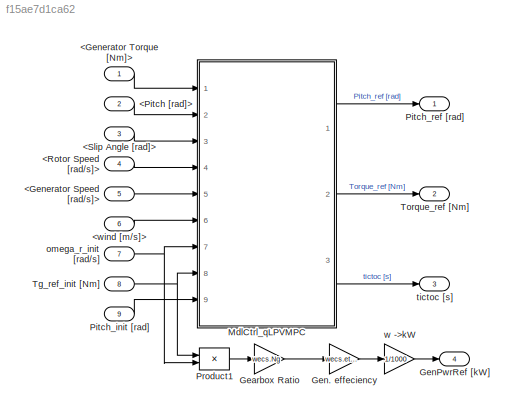
MODEL slx_f15ae7d1ca62
KIND model
CONFIG AbsTol = auto
CONFIG EnableMultiTasking = off
CONFIG FixedStep = DT
CONFIG MaxStep = auto
CONFIG MinStep = auto
CONFIG RelTol = 1e-3
CONFIG SampleTimeConstraint = Unconstrained
CONFIG Solver = FixedStepAuto
CONFIG SolverName = FixedStepAuto
CONFIG StartTime = 0.0
CONFIG StopTime = 10.0
BLOCK [Inport] <Generator Speed [rad//s]>
  IconDisplay = Port number
  Port = 5
BLOCK [Inport] <Generator Torque  [Nm]>
  IconDisplay = Port number
BLOCK [Inport] <Pitch [rad]>
  IconDisplay = Port number
  Port = 2
BLOCK [Inport] <Rotor Speed [rad//s]>
  IconDisplay = Port number
  Port = 4
BLOCK [Inport] <Slip Angle [rad]>
  IconDisplay = Port number
  Port = 3
BLOCK [Inport] <wind [m//s]>
  IconDisplay = Port number
  Port = 6
BLOCK [Gain] Gearbox Ratio
  Gain = wecs.Ng
  OutDataTypeStr = Inherit: Inherit via internal rule
  ParamDataTypeStr = Inherit: Inherit via internal rule
  SaturateOnIntegerOverflow = off
BLOCK [Gain] Gen. effeciency
  Gain = wecs.etag
  OutDataTypeStr = Inherit: Inherit via internal rule
  ParamDataTypeStr = Inherit: Inherit via internal rule
  SaturateOnIntegerOverflow = off
BLOCK [Outport] GenPwrRef [kW]
  IconDisplay = Port number
  Port = 4
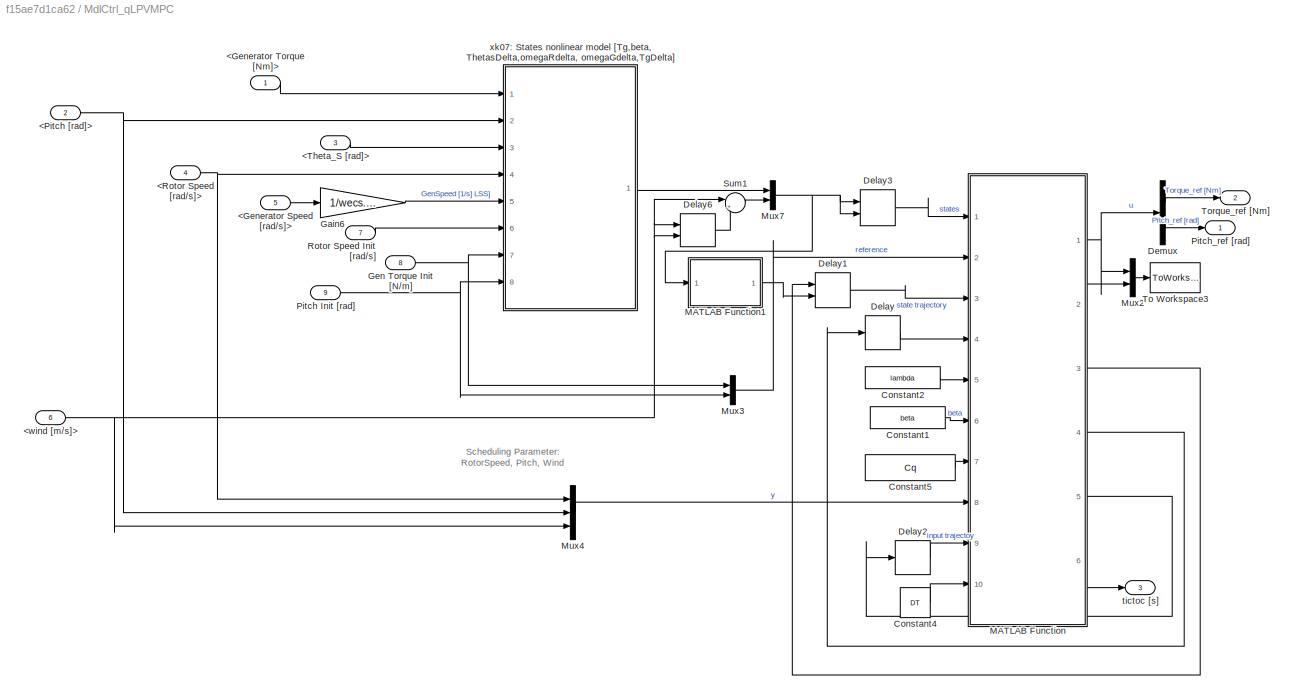
BLOCK [SubSystem] MdlCtrl_qLPVMPC
  Ports = [9, 3]
  RequestExecContextInheritance = off
BLOCK [Inport] MdlCtrl_qLPVMPC/<Generator Speed [rad//s]>
  IconDisplay = Port number
  Port = 5
BLOCK [Inport] MdlCtrl_qLPVMPC/<Generator Torque  [Nm]>
  IconDisplay = Port number
BLOCK [Inport] MdlCtrl_qLPVMPC/<Pitch [rad]>
  IconDisplay = Port number
  Port = 2
BLOCK [Inport] MdlCtrl_qLPVMPC/<Rotor Speed [rad//s]>
  IconDisplay = Port number
  Port = 4
BLOCK [Inport] MdlCtrl_qLPVMPC/<Theta_S [rad]>
  IconDisplay = Port number
  Port = 3
BLOCK [Inport] MdlCtrl_qLPVMPC/<wind [m//s]>
  IconDisplay = Port number
  Port = 6
BLOCK [Constant] MdlCtrl_qLPVMPC/Constant1
  Value = beta
BLOCK [Constant] MdlCtrl_qLPVMPC/Constant2
  Value = lambda
BLOCK [Constant] MdlCtrl_qLPVMPC/Constant4
  Value = DT
BLOCK [Constant] MdlCtrl_qLPVMPC/Constant5
  Value = Cq
BLOCK [Delay] MdlCtrl_qLPVMPC/Delay
  DelayLength = 1
  InitialCondition = zeros(160,1)
  InputPortMap = u0
  Ports = [1, 1]
BLOCK [Delay] MdlCtrl_qLPVMPC/Delay1
  DelayLength = 1
  InitialCondition = Xk07
  InitialConditionSource = Input port
  InputPortMap = u0,p4
  Ports = [2, 1]
BLOCK [Delay] MdlCtrl_qLPVMPC/Delay2
  DelayLength = 1
  InitialCondition = zeros(80,1)
  InputPortMap = u0
  Ports = [1, 1]
BLOCK [Delay] MdlCtrl_qLPVMPC/Delay3
  DelayLength = 1
  InitialCondition = xk07
  InitialConditionSource = Input port
  InputPortMap = u0,p4
  Ports = [2, 1]
BLOCK [Delay] MdlCtrl_qLPVMPC/Delay6
  DelayLength = 1
  InitialCondition = [0, Lin_points.Torque(1)]
  InitialConditionSource = Input port
  InputPortMap = u0,p4
  Ports = [2, 1]
BLOCK [Demux] MdlCtrl_qLPVMPC/Demux
  DisplayOption = bar
  Outputs = 2
  Ports = [1, 2]
BLOCK [Gain] MdlCtrl_qLPVMPC/Gain6
  Gain = 1/wecs.Ng
  OutDataTypeStr = Inherit: Inherit via internal rule
  ParamDataTypeStr = Inherit: Inherit via internal rule
  SaturateOnIntegerOverflow = off
BLOCK [Inport] MdlCtrl_qLPVMPC/Gen Torque Init [N//m]
  IconDisplay = Port number
  Port = 8
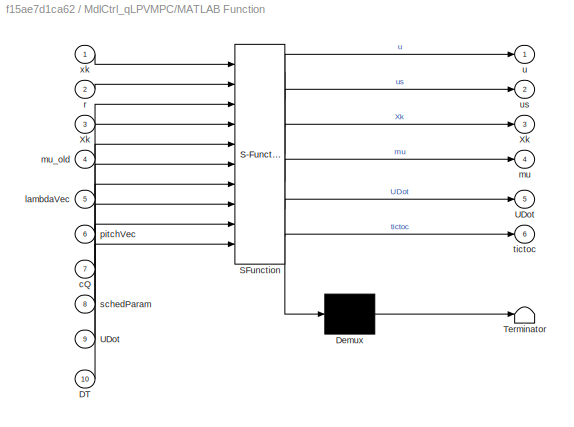
BLOCK [SubSystem] MdlCtrl_qLPVMPC/MATLAB Function
  ErrorFcn = Stateflow.Translate.translate
  PermitHierarchicalResolution = ExplicitOnly
  Ports = [10, 6]
  RequestExecContextInheritance = off
  SFBlockType = MATLAB Function
  TreatAsAtomicUnit = on
BLOCK [Demux] MdlCtrl_qLPVMPC/MATLAB Function/ Demux 
  Outputs = 1
  Ports = [1, 1]
BLOCK [S-Function] MdlCtrl_qLPVMPC/MATLAB Function/ SFunction 
  EnableBusSupport = on
  FunctionName = sf_sfun
  PortCounts = [10 7]
  Ports = [10, 7]
  SFcnIsStateOwnerBlock = off
  SFunctionDeploymentMode = off
  Tag = Stateflow S-Function 2
BLOCK [Terminator] MdlCtrl_qLPVMPC/MATLAB Function/ Terminator 
BLOCK [Inport] MdlCtrl_qLPVMPC/MATLAB Function/DT
  IconDisplay = Port number
  Port = 10
BLOCK [Outport] MdlCtrl_qLPVMPC/MATLAB Function/UDot
  IconDisplay = Port number
  Port = 5
  VectorParamsAs1DForOutWhenUnconnected = off
BLOCK [Inport] MdlCtrl_qLPVMPC/MATLAB Function/UDot 
  IconDisplay = Port number
  Port = 9
BLOCK [Outport] MdlCtrl_qLPVMPC/MATLAB Function/Xk
  IconDisplay = Port number
  Port = 3
  VectorParamsAs1DForOutWhenUnconnected = off
BLOCK [Inport] MdlCtrl_qLPVMPC/MATLAB Function/Xk 
  IconDisplay = Port number
  Port = 3
BLOCK [Inport] MdlCtrl_qLPVMPC/MATLAB Function/cQ
  IconDisplay = Port number
  Port = 7
BLOCK [Inport] MdlCtrl_qLPVMPC/MATLAB Function/lambdaVec
  IconDisplay = Port number
  Port = 5
BLOCK [Outport] MdlCtrl_qLPVMPC/MATLAB Function/mu
  IconDisplay = Port number
  Port = 4
  VectorParamsAs1DForOutWhenUnconnected = off
BLOCK [Inport] MdlCtrl_qLPVMPC/MATLAB Function/mu_old
  IconDisplay = Port number
  Port = 4
BLOCK [Inport] MdlCtrl_qLPVMPC/MATLAB Function/pitchVec
  IconDisplay = Port number
  Port = 6
BLOCK [Inport] MdlCtrl_qLPVMPC/MATLAB Function/r
  IconDisplay = Port number
  Port = 2
BLOCK [Inport] MdlCtrl_qLPVMPC/MATLAB Function/schedParam
  IconDisplay = Port number
  Port = 8
BLOCK [Outport] MdlCtrl_qLPVMPC/MATLAB Function/tictoc
  IconDisplay = Port number
  Port = 6
  VectorParamsAs1DForOutWhenUnconnected = off
BLOCK [Outport] MdlCtrl_qLPVMPC/MATLAB Function/u
  IconDisplay = Port number
  VectorParamsAs1DForOutWhenUnconnected = off
BLOCK [Outport] MdlCtrl_qLPVMPC/MATLAB Function/us
  IconDisplay = Port number
  Port = 2
  VectorParamsAs1DForOutWhenUnconnected = off
BLOCK [Inport] MdlCtrl_qLPVMPC/MATLAB Function/xk
  IconDisplay = Port number
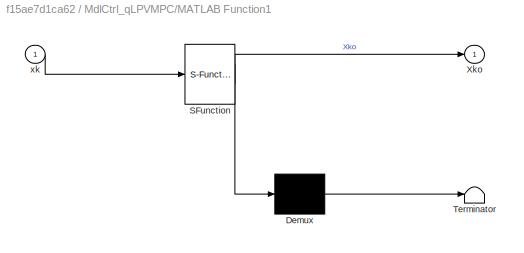
BLOCK [SubSystem] MdlCtrl_qLPVMPC/MATLAB Function1
  ErrorFcn = Stateflow.Translate.translate
  PermitHierarchicalResolution = ExplicitOnly
  Ports = [1, 1]
  RequestExecContextInheritance = off
  SFBlockType = MATLAB Function
  TreatAsAtomicUnit = on
BLOCK [Demux] MdlCtrl_qLPVMPC/MATLAB Function1/ Demux 
  Outputs = 1
  Ports = [1, 1]
BLOCK [S-Function] MdlCtrl_qLPVMPC/MATLAB Function1/ SFunction 
  EnableBusSupport = on
  FunctionName = sf_sfun
  PortCounts = [1 2]
  Ports = [1, 2]
  SFcnIsStateOwnerBlock = off
  SFunctionDeploymentMode = off
  Tag = Stateflow S-Function 1
BLOCK [Terminator] MdlCtrl_qLPVMPC/MATLAB Function1/ Terminator 
BLOCK [Outport] MdlCtrl_qLPVMPC/MATLAB Function1/Xko
  IconDisplay = Port number
BLOCK [Inport] MdlCtrl_qLPVMPC/MATLAB Function1/xk
  IconDisplay = Port number
BLOCK [Mux] MdlCtrl_qLPVMPC/Mux2
  DisplayOption = bar
  Inputs = 2
  Ports = [2, 1]
BLOCK [Mux] MdlCtrl_qLPVMPC/Mux3
  DisplayOption = bar
  Inputs = 2
  Ports = [2, 1]
BLOCK [Mux] MdlCtrl_qLPVMPC/Mux4
  DisplayOption = bar
  Inputs = 3
  Ports = [3, 1]
BLOCK [Mux] MdlCtrl_qLPVMPC/Mux7
  DisplayOption = bar
  Inputs = 2
  Ports = [2, 1]
BLOCK [Inport] MdlCtrl_qLPVMPC/Pitch Init [rad]
  IconDisplay = Port number
  Port = 9
BLOCK [Outport] MdlCtrl_qLPVMPC/Pitch_ref [rad]
  IconDisplay = Port number
BLOCK [Inport] MdlCtrl_qLPVMPC/Rotor Speed Init [rad//s]
  IconDisplay = Port number
  Port = 7
BLOCK [Sum] MdlCtrl_qLPVMPC/Sum1
  IconShape = round
  InputSameDT = off
  Inputs = |+-
  OutDataTypeStr = Inherit: Inherit via internal rule
  Ports = [2, 1]
  SaturateOnIntegerOverflow = off
BLOCK [ToWorkspace] MdlCtrl_qLPVMPC/To Workspace3
  Commented = on
  FixptAsFi = on
  MaxDataPoints = inf
  Ports = [1]
  SampleTime = -1
  Save2DSignal = 2-D array (concatenate along first dimension)
  VariableName = u_uss
BLOCK [Outport] MdlCtrl_qLPVMPC/Torque_ref [Nm]
  IconDisplay = Port number
  Port = 2
BLOCK [Outport] MdlCtrl_qLPVMPC/tictoc [s]
  IconDisplay = Port number
  Port = 3
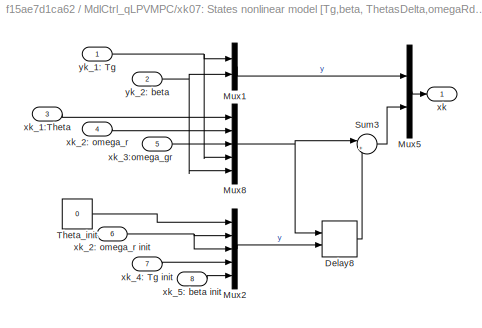
BLOCK [SubSystem] MdlCtrl_qLPVMPC/xk07: States nonlinear model [Tg,beta, ThetasDelta,omegaRdelta, omegaGdelta,TgDelta]
  Ports = [8, 1]
  RequestExecContextInheritance = off
BLOCK [Delay] MdlCtrl_qLPVMPC/xk07: States nonlinear model [Tg,beta, ThetasDelta,omegaRdelta, omegaGdelta,TgDelta]/Delay8
  DelayLength = 1
  InitialCondition = [0,omegabar]
  InitialConditionSource = Input port
  InputPortMap = u0,p4
  Ports = [2, 1]
BLOCK [Mux] MdlCtrl_qLPVMPC/xk07: States nonlinear model [Tg,beta, ThetasDelta,omegaRdelta, omegaGdelta,TgDelta]/Mux1
  DisplayOption = bar
  Inputs = 2
  Ports = [2, 1]
BLOCK [Mux] MdlCtrl_qLPVMPC/xk07: States nonlinear model [Tg,beta, ThetasDelta,omegaRdelta, omegaGdelta,TgDelta]/Mux2
  DisplayOption = bar
  Inputs = 5
  Ports = [5, 1]
BLOCK [Mux] MdlCtrl_qLPVMPC/xk07: States nonlinear model [Tg,beta, ThetasDelta,omegaRdelta, omegaGdelta,TgDelta]/Mux5
  DisplayOption = bar
  Inputs = 2
  Ports = [2, 1]
BLOCK [Mux] MdlCtrl_qLPVMPC/xk07: States nonlinear model [Tg,beta, ThetasDelta,omegaRdelta, omegaGdelta,TgDelta]/Mux8
  DisplayOption = bar
  Inputs = 5
  Ports = [5, 1]
BLOCK [Sum] MdlCtrl_qLPVMPC/xk07: States nonlinear model [Tg,beta, ThetasDelta,omegaRdelta, omegaGdelta,TgDelta]/Sum3
  IconShape = round
  InputSameDT = off
  Inputs = |+-
  OutDataTypeStr = Inherit: Inherit via internal rule
  Ports = [2, 1]
  SaturateOnIntegerOverflow = off
BLOCK [Constant] MdlCtrl_qLPVMPC/xk07: States nonlinear model [Tg,beta, ThetasDelta,omegaRdelta, omegaGdelta,TgDelta]/Theta_init
  Value = 0
BLOCK [Outport] MdlCtrl_qLPVMPC/xk07: States nonlinear model [Tg,beta, ThetasDelta,omegaRdelta, omegaGdelta,TgDelta]/xk
  IconDisplay = Port number
  VectorParamsAs1DForOutWhenUnconnected = off
BLOCK [Inport] MdlCtrl_qLPVMPC/xk07: States nonlinear model [Tg,beta, ThetasDelta,omegaRdelta, omegaGdelta,TgDelta]/xk_1:Theta
  IconDisplay = Port number
  Port = 3
BLOCK [Inport] MdlCtrl_qLPVMPC/xk07: States nonlinear model [Tg,beta, ThetasDelta,omegaRdelta, omegaGdelta,TgDelta]/xk_2: omega_r
  IconDisplay = Port number
  Port = 4
BLOCK [Inport] MdlCtrl_qLPVMPC/xk07: States nonlinear model [Tg,beta, ThetasDelta,omegaRdelta, omegaGdelta,TgDelta]/xk_2: omega_r init
  IconDisplay = Port number
  Port = 6
BLOCK [Inport] MdlCtrl_qLPVMPC/xk07: States nonlinear model [Tg,beta, ThetasDelta,omegaRdelta, omegaGdelta,TgDelta]/xk_3:omega_gr 
  IconDisplay = Port number
  Port = 5
BLOCK [Inport] MdlCtrl_qLPVMPC/xk07: States nonlinear model [Tg,beta, ThetasDelta,omegaRdelta, omegaGdelta,TgDelta]/xk_4: Tg init
  IconDisplay = Port number
  Port = 7
BLOCK [Inport] MdlCtrl_qLPVMPC/xk07: States nonlinear model [Tg,beta, ThetasDelta,omegaRdelta, omegaGdelta,TgDelta]/xk_5: beta init
  IconDisplay = Port number
  Port = 8
BLOCK [Inport] MdlCtrl_qLPVMPC/xk07: States nonlinear model [Tg,beta, ThetasDelta,omegaRdelta, omegaGdelta,TgDelta]/yk_1: Tg
  IconDisplay = Port number
BLOCK [Inport] MdlCtrl_qLPVMPC/xk07: States nonlinear model [Tg,beta, ThetasDelta,omegaRdelta, omegaGdelta,TgDelta]/yk_2: beta
  IconDisplay = Port number
  Port = 2
BLOCK [Inport] Pitch_init [rad]
  IconDisplay = Port number
  Port = 9
BLOCK [Outport] Pitch_ref  [rad]
  IconDisplay = Port number
BLOCK [Product] Product1
  InputSameDT = off
  OutDataTypeStr = Inherit: Inherit via internal rule
  Ports = [2, 1]
  SaturateOnIntegerOverflow = off
BLOCK [Inport] Tg_ref_init [Nm]
  IconDisplay = Port number
  Port = 8
BLOCK [Outport] Torque_ref [Nm]
  IconDisplay = Port number
  Port = 2
BLOCK [Inport] omega_r_init  [rad//s]
  IconDisplay = Port number
  Port = 7
BLOCK [Outport] tictoc [s]
  IconDisplay = Port number
  Port = 3
BLOCK [Gain] w ->kW
  Gain = 1/1000
  OutDataTypeStr = Inherit: Inherit via internal rule
  ParamDataTypeStr = Inherit: Inherit via internal rule
  SaturateOnIntegerOverflow = off
ANNOTATION MdlCtrl_qLPVMPC: Scheduling Parameter: RotorSpeed, Pitch, Wind
LINE <Generator Speed [rad//s]>:1 -> MdlCtrl_qLPVMPC:5
LINE <Generator Torque  [Nm]>:1 -> MdlCtrl_qLPVMPC:1
LINE <Pitch [rad]>:1 -> MdlCtrl_qLPVMPC:2
LINE <Rotor Speed [rad//s]>:1 -> MdlCtrl_qLPVMPC:4
LINE <Slip Angle [rad]>:1 -> MdlCtrl_qLPVMPC:3
LINE <wind [m//s]>:1 -> MdlCtrl_qLPVMPC:6
LINE Gearbox Ratio:1 -> Gen. effeciency:1
LINE Gen. effeciency:1 -> w ->kW:1
LINE MdlCtrl_qLPVMPC/<Generator Speed [rad//s]>:1 -> MdlCtrl_qLPVMPC/Gain6:1
LINE MdlCtrl_qLPVMPC/<Generator Torque  [Nm]>:1 -> MdlCtrl_qLPVMPC/xk07: States nonlinear model [Tg,beta, ThetasDelta,omegaRdelta, omegaGdelta,TgDelta]:1
NET MdlCtrl_qLPVMPC/<Pitch [rad]>:1 -> MdlCtrl_qLPVMPC/Mux4:2, MdlCtrl_qLPVMPC/xk07: States nonlinear model [Tg,beta, ThetasDelta,omegaRdelta, omegaGdelta,TgDelta]:2
NET MdlCtrl_qLPVMPC/<Rotor Speed [rad//s]>:1 -> MdlCtrl_qLPVMPC/Mux4:1, MdlCtrl_qLPVMPC/xk07: States nonlinear model [Tg,beta, ThetasDelta,omegaRdelta, omegaGdelta,TgDelta]:4
LINE MdlCtrl_qLPVMPC/<Theta_S [rad]>:1 -> MdlCtrl_qLPVMPC/xk07: States nonlinear model [Tg,beta, ThetasDelta,omegaRdelta, omegaGdelta,TgDelta]:3
NET MdlCtrl_qLPVMPC/<wind [m//s]>:1 -> MdlCtrl_qLPVMPC/Delay6:1, MdlCtrl_qLPVMPC/Delay6:2, MdlCtrl_qLPVMPC/Mux4:3, MdlCtrl_qLPVMPC/Sum1:1
LINE MdlCtrl_qLPVMPC/Constant1:1 -> MdlCtrl_qLPVMPC/MATLAB Function:6
LINE MdlCtrl_qLPVMPC/Constant2:1 -> MdlCtrl_qLPVMPC/MATLAB Function:5
LINE MdlCtrl_qLPVMPC/Constant4:1 -> MdlCtrl_qLPVMPC/MATLAB Function:10
LINE MdlCtrl_qLPVMPC/Constant5:1 -> MdlCtrl_qLPVMPC/MATLAB Function:7
LINE MdlCtrl_qLPVMPC/Delay1:1 -> MdlCtrl_qLPVMPC/MATLAB Function:3
LINE MdlCtrl_qLPVMPC/Delay2:1 -> MdlCtrl_qLPVMPC/MATLAB Function:9
LINE MdlCtrl_qLPVMPC/Delay3:1 -> MdlCtrl_qLPVMPC/MATLAB Function:1
LINE MdlCtrl_qLPVMPC/Delay6:1 -> MdlCtrl_qLPVMPC/Sum1:2
LINE MdlCtrl_qLPVMPC/Delay:1 -> MdlCtrl_qLPVMPC/MATLAB Function:4
LINE MdlCtrl_qLPVMPC/Demux:1 -> MdlCtrl_qLPVMPC/Torque_ref [Nm]:1
LINE MdlCtrl_qLPVMPC/Demux:2 -> MdlCtrl_qLPVMPC/Pitch_ref [rad]:1
LINE MdlCtrl_qLPVMPC/Gain6:1 -> MdlCtrl_qLPVMPC/xk07: States nonlinear model [Tg,beta, ThetasDelta,omegaRdelta, omegaGdelta,TgDelta]:5
NET MdlCtrl_qLPVMPC/Gen Torque Init [N//m]:1 -> MdlCtrl_qLPVMPC/Mux3:1, MdlCtrl_qLPVMPC/xk07: States nonlinear model [Tg,beta, ThetasDelta,omegaRdelta, omegaGdelta,TgDelta]:7
LINE MdlCtrl_qLPVMPC/MATLAB Function1:1 -> MdlCtrl_qLPVMPC/Delay1:2
NET MdlCtrl_qLPVMPC/MATLAB Function:1 -> MdlCtrl_qLPVMPC/Demux:1, MdlCtrl_qLPVMPC/Mux2:1
LINE MdlCtrl_qLPVMPC/MATLAB Function:2 -> MdlCtrl_qLPVMPC/Mux2:2
LINE MdlCtrl_qLPVMPC/MATLAB Function:3 -> MdlCtrl_qLPVMPC/Delay1:1
LINE MdlCtrl_qLPVMPC/MATLAB Function:4 -> MdlCtrl_qLPVMPC/Delay:1
LINE MdlCtrl_qLPVMPC/MATLAB Function:5 -> MdlCtrl_qLPVMPC/Delay2:1
LINE MdlCtrl_qLPVMPC/MATLAB Function:6 -> MdlCtrl_qLPVMPC/tictoc [s]:1
LINE MdlCtrl_qLPVMPC/Mux2:1 -> MdlCtrl_qLPVMPC/To Workspace3:1
LINE MdlCtrl_qLPVMPC/Mux3:1 -> MdlCtrl_qLPVMPC/MATLAB Function:2
LINE MdlCtrl_qLPVMPC/Mux4:1 -> MdlCtrl_qLPVMPC/MATLAB Function:8
NET MdlCtrl_qLPVMPC/Mux7:1 -> MdlCtrl_qLPVMPC/Delay3:1, MdlCtrl_qLPVMPC/Delay3:2, MdlCtrl_qLPVMPC/MATLAB Function1:1
NET MdlCtrl_qLPVMPC/Pitch Init [rad]:1 -> MdlCtrl_qLPVMPC/Mux3:2, MdlCtrl_qLPVMPC/xk07: States nonlinear model [Tg,beta, ThetasDelta,omegaRdelta, omegaGdelta,TgDelta]:8
LINE MdlCtrl_qLPVMPC/Rotor Speed Init [rad//s]:1 -> MdlCtrl_qLPVMPC/xk07: States nonlinear model [Tg,beta, ThetasDelta,omegaRdelta, omegaGdelta,TgDelta]:6
LINE MdlCtrl_qLPVMPC/Sum1:1 -> MdlCtrl_qLPVMPC/Mux7:2
LINE MdlCtrl_qLPVMPC/xk07: States nonlinear model [Tg,beta, ThetasDelta,omegaRdelta, omegaGdelta,TgDelta]/Delay8:1 -> MdlCtrl_qLPVMPC/xk07: States nonlinear model [Tg,beta, ThetasDelta,omegaRdelta, omegaGdelta,TgDelta]/Sum3:2
LINE MdlCtrl_qLPVMPC/xk07: States nonlinear model [Tg,beta, ThetasDelta,omegaRdelta, omegaGdelta,TgDelta]/Mux1:1 -> MdlCtrl_qLPVMPC/xk07: States nonlinear model [Tg,beta, ThetasDelta,omegaRdelta, omegaGdelta,TgDelta]/Mux5:1
LINE MdlCtrl_qLPVMPC/xk07: States nonlinear model [Tg,beta, ThetasDelta,omegaRdelta, omegaGdelta,TgDelta]/Mux2:1 -> MdlCtrl_qLPVMPC/xk07: States nonlinear model [Tg,beta, ThetasDelta,omegaRdelta, omegaGdelta,TgDelta]/Delay8:2
LINE MdlCtrl_qLPVMPC/xk07: States nonlinear model [Tg,beta, ThetasDelta,omegaRdelta, omegaGdelta,TgDelta]/Mux5:1 -> MdlCtrl_qLPVMPC/xk07: States nonlinear model [Tg,beta, ThetasDelta,omegaRdelta, omegaGdelta,TgDelta]/xk:1
NET MdlCtrl_qLPVMPC/xk07: States nonlinear model [Tg,beta, ThetasDelta,omegaRdelta, omegaGdelta,TgDelta]/Mux8:1 -> MdlCtrl_qLPVMPC/xk07: States nonlinear model [Tg,beta, ThetasDelta,omegaRdelta, omegaGdelta,TgDelta]/Delay8:1, MdlCtrl_qLPVMPC/xk07: States nonlinear model [Tg,beta, ThetasDelta,omegaRdelta, omegaGdelta,TgDelta]/Sum3:1
LINE MdlCtrl_qLPVMPC/xk07: States nonlinear model [Tg,beta, ThetasDelta,omegaRdelta, omegaGdelta,TgDelta]/Sum3:1 -> MdlCtrl_qLPVMPC/xk07: States nonlinear model [Tg,beta, ThetasDelta,omegaRdelta, omegaGdelta,TgDelta]/Mux5:2
LINE MdlCtrl_qLPVMPC/xk07: States nonlinear model [Tg,beta, ThetasDelta,omegaRdelta, omegaGdelta,TgDelta]/Theta_init:1 -> MdlCtrl_qLPVMPC/xk07: States nonlinear model [Tg,beta, ThetasDelta,omegaRdelta, omegaGdelta,TgDelta]/Mux2:1
LINE MdlCtrl_qLPVMPC/xk07: States nonlinear model [Tg,beta, ThetasDelta,omegaRdelta, omegaGdelta,TgDelta]/xk_1:Theta:1 -> MdlCtrl_qLPVMPC/xk07: States nonlinear model [Tg,beta, ThetasDelta,omegaRdelta, omegaGdelta,TgDelta]/Mux8:1
NET MdlCtrl_qLPVMPC/xk07: States nonlinear model [Tg,beta, ThetasDelta,omegaRdelta, omegaGdelta,TgDelta]/xk_2: omega_r init:1 -> MdlCtrl_qLPVMPC/xk07: States nonlinear model [Tg,beta, ThetasDelta,omegaRdelta, omegaGdelta,TgDelta]/Mux2:2, MdlCtrl_qLPVMPC/xk07: States nonlinear model [Tg,beta, ThetasDelta,omegaRdelta, omegaGdelta,TgDelta]/Mux2:3
LINE MdlCtrl_qLPVMPC/xk07: States nonlinear model [Tg,beta, ThetasDelta,omegaRdelta, omegaGdelta,TgDelta]/xk_2: omega_r:1 -> MdlCtrl_qLPVMPC/xk07: States nonlinear model [Tg,beta, ThetasDelta,omegaRdelta, omegaGdelta,TgDelta]/Mux8:2
LINE MdlCtrl_qLPVMPC/xk07: States nonlinear model [Tg,beta, ThetasDelta,omegaRdelta, omegaGdelta,TgDelta]/xk_3:omega_gr :1 -> MdlCtrl_qLPVMPC/xk07: States nonlinear model [Tg,beta, ThetasDelta,omegaRdelta, omegaGdelta,TgDelta]/Mux8:3
LINE MdlCtrl_qLPVMPC/xk07: States nonlinear model [Tg,beta, ThetasDelta,omegaRdelta, omegaGdelta,TgDelta]/xk_4: Tg init:1 -> MdlCtrl_qLPVMPC/xk07: States nonlinear model [Tg,beta, ThetasDelta,omegaRdelta, omegaGdelta,TgDelta]/Mux2:4
LINE MdlCtrl_qLPVMPC/xk07: States nonlinear model [Tg,beta, ThetasDelta,omegaRdelta, omegaGdelta,TgDelta]/xk_5: beta init:1 -> MdlCtrl_qLPVMPC/xk07: States nonlinear model [Tg,beta, ThetasDelta,omegaRdelta, omegaGdelta,TgDelta]/Mux2:5
NET MdlCtrl_qLPVMPC/xk07: States nonlinear model [Tg,beta, ThetasDelta,omegaRdelta, omegaGdelta,TgDelta]/yk_1: Tg:1 -> MdlCtrl_qLPVMPC/xk07: States nonlinear model [Tg,beta, ThetasDelta,omegaRdelta, omegaGdelta,TgDelta]/Mux1:1, MdlCtrl_qLPVMPC/xk07: States nonlinear model [Tg,beta, ThetasDelta,omegaRdelta, omegaGdelta,TgDelta]/Mux8:4
NET MdlCtrl_qLPVMPC/xk07: States nonlinear model [Tg,beta, ThetasDelta,omegaRdelta, omegaGdelta,TgDelta]/yk_2: beta:1 -> MdlCtrl_qLPVMPC/xk07: States nonlinear model [Tg,beta, ThetasDelta,omegaRdelta, omegaGdelta,TgDelta]/Mux1:2, MdlCtrl_qLPVMPC/xk07: States nonlinear model [Tg,beta, ThetasDelta,omegaRdelta, omegaGdelta,TgDelta]/Mux8:5
LINE MdlCtrl_qLPVMPC/xk07: States nonlinear model [Tg,beta, ThetasDelta,omegaRdelta, omegaGdelta,TgDelta]:1 -> MdlCtrl_qLPVMPC/Mux7:1
LINE MdlCtrl_qLPVMPC:1 -> Pitch_ref  [rad]:1
LINE MdlCtrl_qLPVMPC:2 -> Torque_ref [Nm]:1
LINE MdlCtrl_qLPVMPC:3 -> tictoc [s]:1
LINE Pitch_init [rad]:1 -> MdlCtrl_qLPVMPC:9
LINE Product1:1 -> Gearbox Ratio:1
NET Tg_ref_init [Nm]:1 -> MdlCtrl_qLPVMPC:8, Product1:1
NET omega_r_init  [rad//s]:1 -> MdlCtrl_qLPVMPC:7, Product1:2
LINE w ->kW:1 -> GenPwrRef [kW]:1
note: NET lines group one-source signal fan-out (src -> all destinations, sorted); 1:1 wires keep LINE
CHART MdlCtrl_qLPVMPC/MATLAB Function1 states=1 transitions=1
  STATE_LABEL 'eML_blk_kernel()'
  STATE_LABEL 'SCRIPT:\nfunction Xko = fcnKron(xk)\n\nN = 40;\nXko = kron(ones(N,1),xk);\n'
CHART MdlCtrl_qLPVMPC/MATLAB Function states=1 transitions=1
  STATE_LABEL 'eML_blk_kernel()'
  STATE_LABEL "SCRIPT:\nfunction [u,us,Xk,mu,UDot,tictoc] = qLPVMPC_WECS_beta(xk,r, Xk,mu_old,lambdaVec,pitchVec,cQ,schedParam,UDot,DT)\n% MATLAB_Function calculates controller output u. It turns the QP into a \n% linear complementarity problem (LCP) and solves it with Lemke's algorithm.\n%\n% Inputs: * r: reference\n%         * xk: quasiLPV KF state estimates\n%         * Xk: Xko(= L*xk+S*U) delayed by one sample time...<+3451ch>"
